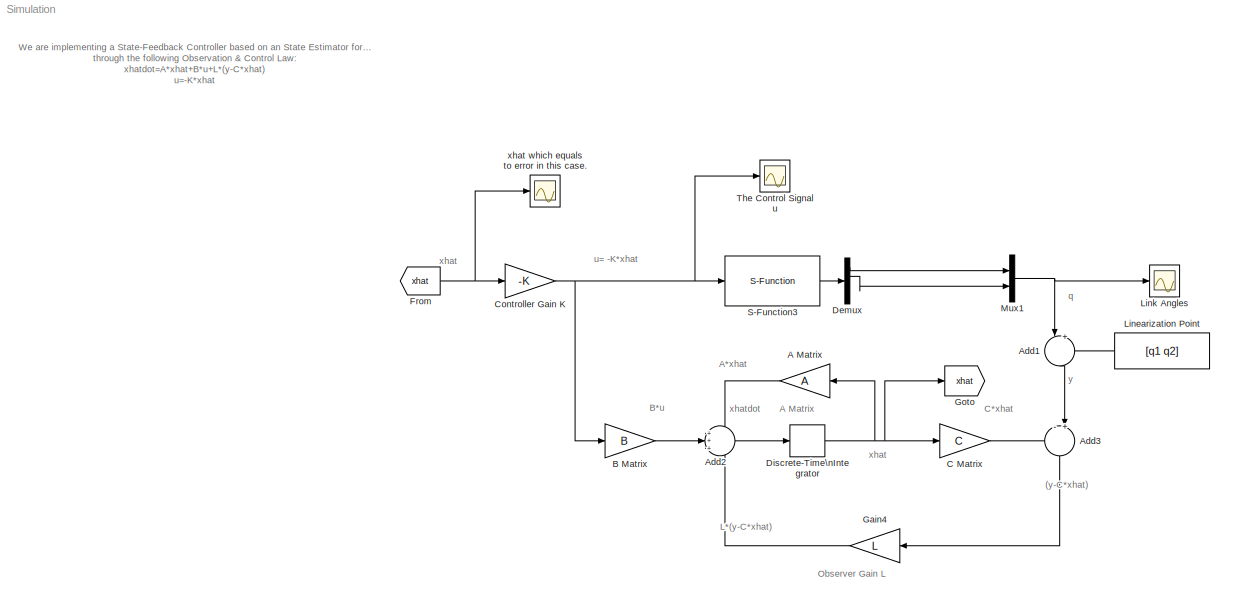
MODEL Simulation
KIND model
BLOCK [Gain] A Matrix
  Gain = A
  Multiplication = Matrix(K*u)
  OutDataTypeStr = Inherit: Inherit via internal rule
  ParamDataTypeStr = Inherit: Inherit via internal rule
  SID = 14
  SaturateOnIntegerOverflow = off
BLOCK [Sum] Add1
  IconShape = round
  InputSameDT = off
  Inputs = |+-
  OutDataTypeStr = Inherit: Inherit via internal rule
  Ports = [2, 1]
  SID = 107
  SaturateOnIntegerOverflow = off
BLOCK [Sum] Add2
  IconShape = round
  InputSameDT = off
  Inputs = +++
  OutDataTypeStr = Inherit: Inherit via internal rule
  Ports = [3, 1]
  SID = 3
  SaturateOnIntegerOverflow = off
BLOCK [Sum] Add3
  IconShape = round
  InputSameDT = off
  Inputs = -+|
  OutDataTypeStr = Inherit: Inherit via internal rule
  Ports = [2, 1]
  SID = 4
  SaturateOnIntegerOverflow = off
BLOCK [Gain] B Matrix
  Gain = B
  Multiplication = Matrix(K*u)
  OutDataTypeStr = Inherit: Inherit via internal rule
  ParamDataTypeStr = Inherit: Inherit via internal rule
  SID = 12
  SaturateOnIntegerOverflow = off
BLOCK [Gain] C Matrix
  Gain = C
  Multiplication = Matrix(K*u)
  OutDataTypeStr = Inherit: Inherit via internal rule
  ParamDataTypeStr = Inherit: Inherit via internal rule
  SID = 13
  SaturateOnIntegerOverflow = off
BLOCK [Gain] Controller Gain K
  Gain = -K
  Multiplication = Matrix(K*u)
  OutDataTypeStr = Inherit: Inherit via internal rule
  ParamDataTypeStr = Inherit: Inherit via internal rule
  SID = 11
  SaturateOnIntegerOverflow = off
BLOCK [Demux] Demux
  DisplayOption = bar
  Ports = [1, 4]
  SID = 112
BLOCK [DiscreteIntegrator] Discrete-Time\nIntegrator
  ICPrevOutput = DiscIntNeverNeededParam
  ICPrevScaledInput = DiscIntNeverNeededParam
  InitialCondition = [0 0 0 0]'
  Ports = [1, 1]
  SID = 10
  SampleTime = T
BLOCK [From] From
  GotoTag = xhat
  SID = 110
BLOCK [Gain] Gain4
  Gain = L
  Multiplication = Matrix(K*u)
  OutDataTypeStr = Inherit: Inherit via internal rule
  ParamDataTypeStr = Inherit: Inherit via internal rule
  SID = 15
  SaturateOnIntegerOverflow = off
BLOCK [Goto] Goto
  GotoTag = xhat
  SID = 109
BLOCK [Constant] Linearization Point
  SID = 106
  Value = [q1 q2]
BLOCK [Scope] Link Angles
  Floating = off
  NumInputPorts = 1
  Ports = [1]
  SID = 129
  ScopeSpecificationString = Simulink.scopes.TimeScopeBlockCfg('CurrentConfiguration', extmgr.ConfigurationSet(extmgr.Configuration('Core','General UI',true,'FigureColor',[1 1 1]),extmgr.Configuration('Core','Source UI',true),extmgr.Configuration('Sources','WiredSimulink',true,'DataLoggingVariableName','ScopeData1','DataLoggingSaveFormat','StructureWithTime','DataLoggingDecimation','1','DataLoggingDecimateData',true),extmgr.C...<+1828ch>
BLOCK [Mux] Mux1
  DisplayOption = bar
  Inputs = 2
  Ports = [2, 1]
  SID = 17
BLOCK [S-Function] S-Function3
  EnableBusSupport = off
  FunctionName = NonLinModel
  Parameters = X0,Parameters
  Ports = [1, 1]
  SFcnIsStateOwnerBlock = off
  SFunctionDeploymentMode = off
  SID = 111
BLOCK [Scope] The Control Signal u
  Floating = off
  NumInputPorts = 1
  Ports = [1]
  SID = 20
  ScopeSpecificationString = C++SS(StrPVP('Location','[199, 113, 1143, 832]'),StrPVP('Open','off'),MxPVP('AxesTitles',53,'struct(''axes1'',''%<SignalLabel>'')'),StrPVP('TimeRange','20'),StrPVP('YMin','-110'),StrPVP('YMax','110'),StrPVP('SaveName','ScopeData3'),StrPVP('DataFormat','StructureWithTime'),StrPVP('LimitDataPoints','off'),StrPVP('BlockParamSampleTime','0'),StrPVP('Decimation','1'),StrPVP('BlockParamSampleInput','off...<+3ch>
BLOCK [Scope] xhat which equals to error in this case.
  Floating = off
  NumInputPorts = 1
  Ports = [1]
  SID = 21
  ScopeSpecificationString = C++SS(StrPVP('Location','[276, 168, 1220, 887]'),StrPVP('Open','off'),MxPVP('AxesTitles',53,'struct(''axes1'',''%<SignalLabel>'')'),MxPVP('ScopeGraphics',56,'struct(''FigureColor'',''[0.5 0.5 0.5]'',''AxesColor'',''[0 0 0]'',''AxesTickColor'',''[1 1 1]'',''LineColors'',''[1 1 0;1 0 1;0 1 1;1 0 0;0 1 0;0 0 1]'',''LineStyles'',''-|-|-|-|-|-'',''LineWidths'',''[0.5 0.5 0.5 0.5 0.5 0.5]'',''MarkerStyl...<+264ch>
ANNOTATION (root): (y-C*xhat)
ANNOTATION (root): A Matrix
ANNOTATION (root): A*xhat
ANNOTATION (root): B*u
ANNOTATION (root): C*xhat
ANNOTATION (root): L*(y-C*xhat)
ANNOTATION (root): Observer Gain L
ANNOTATION (root): We are implementing a State-Feedback Controller based on an State Estimator for the 2 DOF PantoGraph Mechanism,\nthrough the following Observation & Control Law:\nxhatdot=A*xhat+B*u+L*(y-C*xhat)\nu=-K*xhat
ANNOTATION (root): q
ANNOTATION (root): u= -K*xhat
ANNOTATION (root): xhat
ANNOTATION (root): xhatdot
ANNOTATION (root): y
LINE A Matrix:1 -> Add2:1
LINE Add1:1 -> Add3:2
LINE Add2:1 -> Discrete-Time\nIntegrator:1
LINE Add3:1 -> Gain4:1
LINE B Matrix:1 -> Add2:2
LINE C Matrix:1 -> Add3:1
NET Controller Gain K:1 -> B Matrix:1, S-Function3:1, The Control Signal u:1
LINE Demux:1 -> Mux1:1
LINE Demux:2 -> Mux1:2
NET Discrete-Time\nIntegrator:1 -> A Matrix:1, C Matrix:1, Goto:1
NET From:1 -> Controller Gain K:1, xhat which equals to error in this case.:1
LINE Gain4:1 -> Add2:3
LINE Linearization Point:1 -> Add1:2
NET Mux1:1 -> Add1:1, Link Angles:1
LINE S-Function3:1 -> Demux:1
note: NET lines group one-source signal fan-out (src -> all destinations, sorted); 1:1 wires keep LINE
